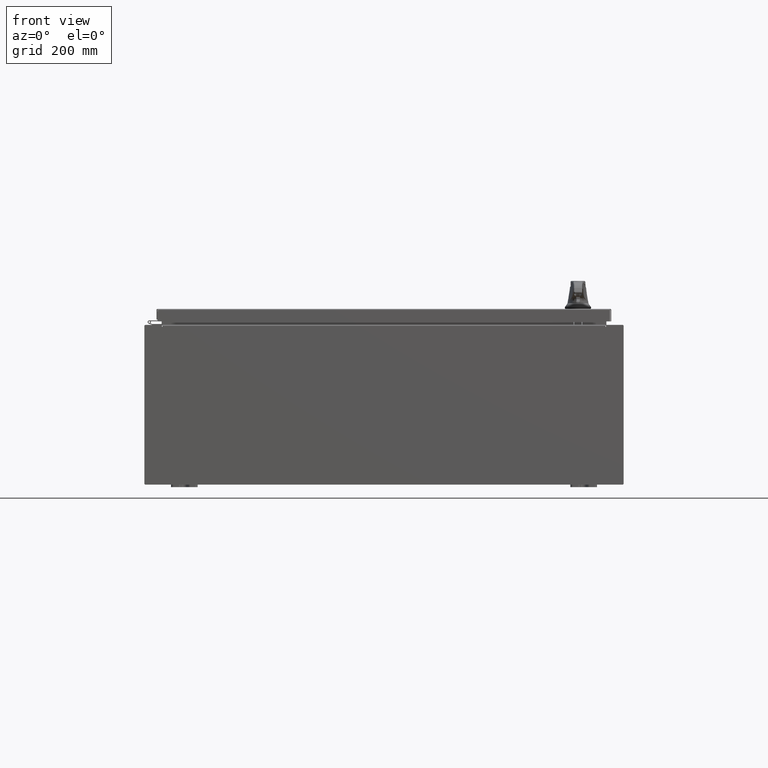
[diagram: clean part render]
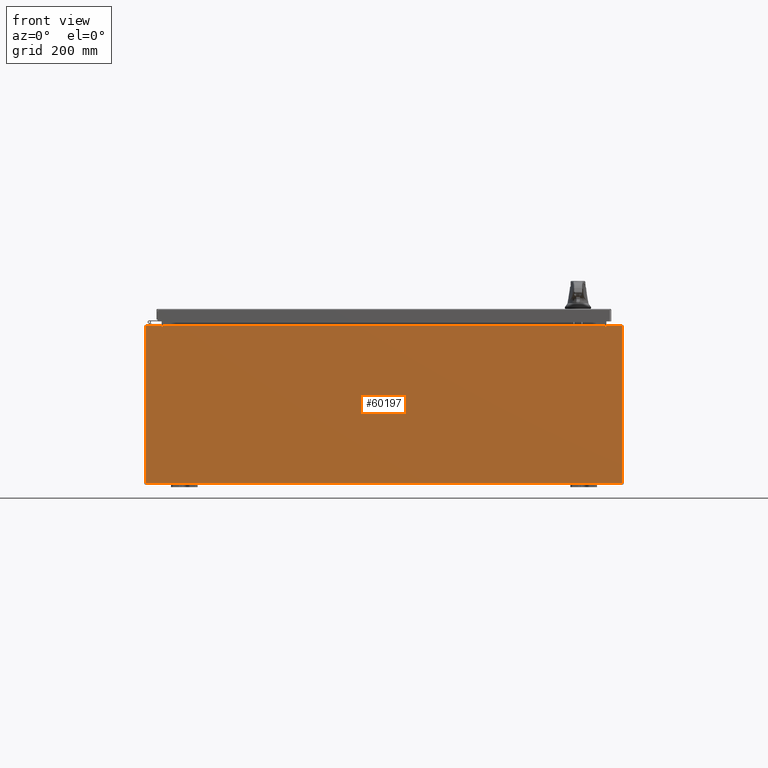
[diagram: same view with one face highlighted and labeled with its STEP entity id]
A machine part, front view. The second image highlights one B-rep face of the part: STEP entity #60197.
In plain terms, the highlighted planar face has unit normal (-0, 1, -0).
Its self-contained STEP definition (entity closure, byte-faithful):
#1358 = EDGE_CURVE ( 'NONE', #98759, #81395, #45946, .T. ) ;
#1912 = CARTESIAN_POINT ( 'NONE',  ( -16.63720000000000000, -0.0000000000000000000, 5.874949999999999200 ) ) ;
#5727 = CARTESIAN_POINT ( 'NONE',  ( -17.92529999999999600, 0.0000000000000000000, 5.925299999999999100 ) ) ;
#6044 = VERTEX_POINT ( 'NONE', #106614 ) ;
#6790 = DIRECTION ( 'NONE',  ( -8.681145560799821800E-014, 0.0000000000000000000, -1.000000000000000000 ) ) ;
#10594 = EDGE_CURVE ( 'NONE', #92083, #6044, #34219, .T. ) ;
#10707 = LINE ( 'NONE', #107442, #84788 ) ;
#11484 = VECTOR ( 'NONE', #6790, 39.37007874015748100 ) ;
#12749 = ORIENTED_EDGE ( 'NONE', *, *, #67969, .T. ) ;
#13235 = AXIS2_PLACEMENT_3D ( 'NONE', #79910, #22111, #89700 ) ;
#14385 = AXIS2_PLACEMENT_3D ( 'NONE', #47546, #57690, #125338 ) ;
#14425 = FACE_OUTER_BOUND ( 'NONE', #74798, .T. ) ;
#19221 = DIRECTION ( 'NONE',  ( -1.000000000000000000, -0.0000000000000000000, -0.0000000000000000000 ) ) ;
#19814 = CARTESIAN_POINT ( 'NONE',  ( -16.67455000000000000, -0.0000000000000000000, 0.0000000000000000000 ) ) ;
#20822 = DIRECTION ( 'NONE',  ( 0.0000000000000000000, 0.0000000000000000000, -1.000000000000000000 ) ) ;
#21881 = DIRECTION ( 'NONE',  ( 1.000000000000000000, 0.0000000000000000000, 0.0000000000000000000 ) ) ;
#22111 = DIRECTION ( 'NONE',  ( -0.0000000000000000000, 1.000000000000000000, -0.0000000000000000000 ) ) ;
#25329 = EDGE_CURVE ( 'NONE', #41999, #98759, #74176, .T. ) ;
#25477 = CARTESIAN_POINT ( 'NONE',  ( 16.67454999999949500, -0.0000000000000000000, -1.447541957108302900E-012 ) ) ;
#26636 = CARTESIAN_POINT ( 'NONE',  ( 17.92530000000000400, 0.0000000000000000000, 5.925300000000000000 ) ) ;
#27918 = ORIENTED_EDGE ( 'NONE', *, *, #1358, .T. ) ;
#28681 = ORIENTED_EDGE ( 'NONE', *, *, #52845, .F. ) ;
#31594 = CARTESIAN_POINT ( 'NONE',  ( -16.63720000000000000, 3.756290991288361700E-016, 5.912299999999999200 ) ) ;
#31846 = EDGE_CURVE ( 'NONE', #6044, #117137, #67552, .T. ) ;
#34219 = LINE ( 'NONE', #25477, #11484 ) ;
#35572 = ORIENTED_EDGE ( 'NONE', *, *, #10594, .F. ) ;
#36361 = DIRECTION ( 'NONE',  ( 0.0000000000000000000, 0.0000000000000000000, -1.000000000000000000 ) ) ;
#37358 = VERTEX_POINT ( 'NONE', #64338 ) ;
#37850 = VECTOR ( 'NONE', #82257, 39.37007874015748100 ) ;
#38138 = DIRECTION ( 'NONE',  ( -0.0000000000000000000, -0.0000000000000000000, 1.000000000000000000 ) ) ;
#38740 = VECTOR ( 'NONE', #87384, 39.37007874015748100 ) ;
#39164 = ORIENTED_EDGE ( 'NONE', *, *, #47479, .F. ) ;
#40990 = CARTESIAN_POINT ( 'NONE',  ( -16.67455000000000000, 0.0000000000000000000, 5.874949999999999200 ) ) ;
#41201 = VECTOR ( 'NONE', #21881, 39.37007874015748100 ) ;
#41999 = VERTEX_POINT ( 'NONE', #101487 ) ;
#42257 = VECTOR ( 'NONE', #73709, 39.37007874015748100 ) ;
#45422 = VECTOR ( 'NONE', #19221, 39.37007874015748100 ) ;
#45946 = LINE ( 'NONE', #63810, #120112 ) ;
#46259 = VERTEX_POINT ( 'NONE', #111574 ) ;
#47075 = ORIENTED_EDGE ( 'NONE', *, *, #25329, .T. ) ;
#47479 = EDGE_CURVE ( 'NONE', #117137, #46259, #92359, .T. ) ;
#47546 = CARTESIAN_POINT ( 'NONE',  ( 0.0000000000000000000, 0.0000000000000000000, 0.0000000000000000000 ) ) ;
#49384 = LINE ( 'NONE', #5727, #123516 ) ;
#49557 = VERTEX_POINT ( 'NONE', #105018 ) ;
#51647 = VERTEX_POINT ( 'NONE', #40990 ) ;
#52845 = EDGE_CURVE ( 'NONE', #49557, #93198, #10707, .T. ) ;
#53813 = CARTESIAN_POINT ( 'NONE',  ( 16.65587500000000500, 0.0000000000000000000, 5.874949999999999200 ) ) ;
#55278 = CARTESIAN_POINT ( 'NONE',  ( -17.92529999999999600, 0.0000000000000000000, -5.925300000000000000 ) ) ;
#55632 = EDGE_CURVE ( 'NONE', #37358, #41999, #72355, .T. ) ;
#57690 = DIRECTION ( 'NONE',  ( 0.0000000000000000000, -1.000000000000000000, 0.0000000000000000000 ) ) ;
#57771 = EDGE_CURVE ( 'NONE', #51647, #64473, #61404, .T. ) ;
#60197 = ADVANCED_FACE ( 'NONE', ( #14425 ), #105897, .F. ) ;
#61404 = LINE ( 'NONE', #19814, #38740 ) ;
#62764 = ORIENTED_EDGE ( 'NONE', *, *, #55632, .T. ) ;
#62959 = EDGE_CURVE ( 'NONE', #49557, #46259, #118360, .T. ) ;
#63509 = DIRECTION ( 'NONE',  ( 0.0000000000000000000, 0.0000000000000000000, -1.000000000000000000 ) ) ;
#63810 = CARTESIAN_POINT ( 'NONE',  ( -17.92529999999999600, 0.0000000000000000000, 5.925299999999999100 ) ) ;
#64338 = CARTESIAN_POINT ( 'NONE',  ( 17.92530000000000400, 0.0000000000000000000, 5.925300000000000000 ) ) ;
#64473 = VERTEX_POINT ( 'NONE', #87670 ) ;
#67552 = CIRCLE ( 'NONE', #125086, 0.01867499999999949400 ) ;
#67969 = EDGE_CURVE ( 'NONE', #81395, #64473, #125457, .T. ) ;
#71508 = CARTESIAN_POINT ( 'NONE',  ( 16.67455000000000700, 0.0000000000000000000, 5.925300000000000000 ) ) ;
#71560 = ORIENTED_EDGE ( 'NONE', *, *, #110837, .T. ) ;
#72355 = LINE ( 'NONE', #26636, #95005 ) ;
#72879 = CARTESIAN_POINT ( 'NONE',  ( -17.92529999999999600, 0.0000000000000000000, 5.925299999999999100 ) ) ;
#73004 = CARTESIAN_POINT ( 'NONE',  ( 16.63720000000000400, 0.0000000000000000000, 0.0000000000000000000 ) ) ;
#73709 = DIRECTION ( 'NONE',  ( 1.000000000000000000, 0.0000000000000000000, 3.048036009064577000E-017 ) ) ;
#74176 = LINE ( 'NONE', #86780, #45422 ) ;
#74798 = EDGE_LOOP ( 'NONE', ( #102771, #118536, #28681, #103328, #39164, #102427, #35572, #71560, #62764, #47075, #27918, #12749 ) ) ;
#79910 = CARTESIAN_POINT ( 'NONE',  ( -16.65587499999999800, 0.0000000000000000000, 5.874949999999999200 ) ) ;
#81395 = VERTEX_POINT ( 'NONE', #92939 ) ;
#82257 = DIRECTION ( 'NONE',  ( 0.0000000000000000000, 0.0000000000000000000, 1.000000000000000000 ) ) ;
#83185 = EDGE_CURVE ( 'NONE', #93198, #51647, #124464, .T. ) ;
#83912 = CARTESIAN_POINT ( 'NONE',  ( 16.63720000000000400, 0.0000000000000000000, 5.874949999999999200 ) ) ;
#84788 = VECTOR ( 'NONE', #20822, 39.37007874015748100 ) ;
#86780 = CARTESIAN_POINT ( 'NONE',  ( -17.92529999999999600, 0.0000000000000000000, -5.925300000000000000 ) ) ;
#87384 = DIRECTION ( 'NONE',  ( 0.0000000000000000000, 0.0000000000000000000, 1.000000000000000000 ) ) ;
#87670 = CARTESIAN_POINT ( 'NONE',  ( -16.67455000000000000, 0.0000000000000000000, 5.925299999999999100 ) ) ;
#89700 = DIRECTION ( 'NONE',  ( 0.0000000000000000000, 0.0000000000000000000, -1.000000000000000000 ) ) ;
#92083 = VERTEX_POINT ( 'NONE', #71508 ) ;
#92359 = LINE ( 'NONE', #73004, #37850 ) ;
#92823 = DIRECTION ( 'NONE',  ( 1.000000000000000000, 0.0000000000000000000, 3.048036009064577000E-017 ) ) ;
#92939 = CARTESIAN_POINT ( 'NONE',  ( -17.92529999999999600, 0.0000000000000000000, 5.925299999999999100 ) ) ;
#93198 = VERTEX_POINT ( 'NONE', #1912 ) ;
#95005 = VECTOR ( 'NONE', #36361, 39.37007874015748100 ) ;
#98759 = VERTEX_POINT ( 'NONE', #55278 ) ;
#101487 = CARTESIAN_POINT ( 'NONE',  ( 17.92530000000000400, 0.0000000000000000000, -5.925300000000000000 ) ) ;
#102427 = ORIENTED_EDGE ( 'NONE', *, *, #31846, .F. ) ;
#102771 = ORIENTED_EDGE ( 'NONE', *, *, #57771, .F. ) ;
#103328 = ORIENTED_EDGE ( 'NONE', *, *, #62959, .T. ) ;
#105018 = CARTESIAN_POINT ( 'NONE',  ( -16.63720000000000000, 3.756290991288361700E-016, 5.912299999999999200 ) ) ;
#105897 = PLANE ( 'NONE',  #14385 ) ;
#106614 = CARTESIAN_POINT ( 'NONE',  ( 16.67455000000000400, 0.0000000000000000000, 5.874949999999999200 ) ) ;
#107442 = CARTESIAN_POINT ( 'NONE',  ( -16.63720000000000000, -0.0000000000000000000, 0.0000000000000000000 ) ) ;
#110837 = EDGE_CURVE ( 'NONE', #92083, #37358, #49384, .T. ) ;
#111574 = CARTESIAN_POINT ( 'NONE',  ( 16.63720000000000400, 0.0000000000000000000, 5.912299999999999200 ) ) ;
#117137 = VERTEX_POINT ( 'NONE', #83912 ) ;
#118360 = LINE ( 'NONE', #31594, #41201 ) ;
#118536 = ORIENTED_EDGE ( 'NONE', *, *, #83185, .F. ) ;
#120112 = VECTOR ( 'NONE', #38138, 39.37007874015748100 ) ;
#121462 = DIRECTION ( 'NONE',  ( -0.0000000000000000000, 1.000000000000000000, -0.0000000000000000000 ) ) ;
#123516 = VECTOR ( 'NONE', #92823, 39.37007874015748100 ) ;
#124464 = CIRCLE ( 'NONE', #13235, 0.01867499999999949400 ) ;
#125086 = AXIS2_PLACEMENT_3D ( 'NONE', #53813, #121462, #63509 ) ;
#125338 = DIRECTION ( 'NONE',  ( 0.0000000000000000000, -0.0000000000000000000, -1.000000000000000000 ) ) ;
#125457 = LINE ( 'NONE', #72879, #42257 ) ;